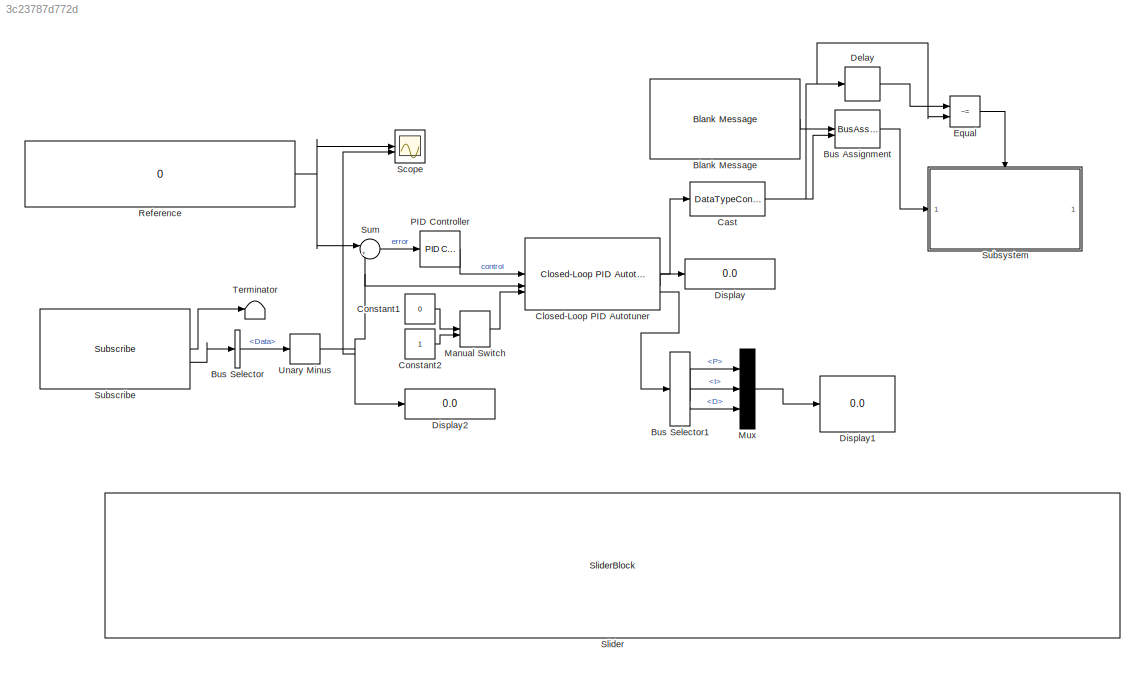
MODEL slx_3c23787d772d
KIND model
CONFIG AbsTol = auto
CONFIG EnableMultiTasking = off
CONFIG FixedStep = 1e-3
CONFIG MaxStep = auto
CONFIG MinStep = auto
CONFIG RelTol = 1e-3
CONFIG SampleTimeConstraint = Unconstrained
CONFIG SolverName = FixedStepAuto
CONFIG StartTime = 0.0
CONFIG StopTime = inf
BLOCK [Reference] Blank Message  REF=robotlib/Blank Message
  LibrarySourceBlock = roslib/ROS/Blank Message
  SourceBlock = robotlib/Blank Message
  SourceType = ROS Blank Message
BLOCK [BusAssignment] Bus Assignment
  AssignedSignals = Data
BLOCK [BusSelector] Bus Selector
  OutputSignals = Data
BLOCK [BusSelector] Bus Selector1
  OutputSignals = P,I,D
BLOCK [DataTypeConversion] Cast
  OutDataTypeStr = int16
  RndMeth = Floor
  SaturateOnIntegerOverflow = off
BLOCK [Reference] Closed-Loop PID Autotuner  REF=slctrlblks/Closed-Loop PID Autotuner
  SourceBlock = slctrlblks/Closed-Loop PID Autotuner
  SourceType = ClosedLoopOnlinePIDTuner
BLOCK [Constant] Constant1
  Value = 0
BLOCK [Constant] Constant2
BLOCK [Delay] Delay
  DelayLength = 1
  InputPortMap = u0
BLOCK [Display] Display
  Decimation = 1
BLOCK [Display] Display1
  Decimation = 1
BLOCK [Display] Display2
  Decimation = 1
BLOCK [RelationalOperator] Equal
  InputSameDT = off
  Operator = ~=
  OutDataTypeStr = boolean
  RndMeth = Simplest
BLOCK [ManualSwitch] Manual Switch
BLOCK [Mux] Mux
  DisplayOption = bar
  Inputs = 3
BLOCK [Reference] PID Controller  REF=slpidlib/PID Controller
  LibrarySourceBlock = simulink/Continuous/PID Controller
  SourceBlock = slpidlib/PID Controller
  SourceType = PID 1dof
BLOCK [Constant] Reference
  SampleTime = 1e-2
  Value = 0
BLOCK [Scope] Scope
  Floating = off
  NumInputPorts = 2
  ScopeSpecificationString = Simulink.scopes.TimeScopeBlockCfg('CurrentConfiguration', extmgr.ConfigurationSet(extmgr.Configuration('Core','General UI',true,'FigureColor',[1 1 1]),extmgr.Configuration('Core','Source UI',true),extmgr.Configuration('Sources','WiredSimulink',true,'DataLoggingSaveFormat','Array','DataLoggingLimitDataPoints',true,'DataLoggingDecimation','1'),extmgr.Configuration('Visuals','Time Domain',true,'Seria...<+2299ch>
BLOCK [SliderBlock] Slider
  ScaleMax = 130
  ScaleMin = -130
  TickInterval = 10
BLOCK [Reference] Subscribe  REF=robotlib/Subscribe
  LibrarySourceBlock = roslib/ROS/Subscribe
  SourceBlock = robotlib/Subscribe
  SourceType = ROS Subscribe
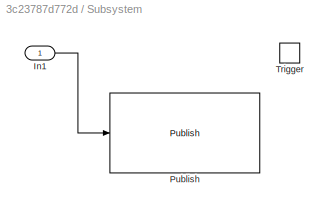
BLOCK [SubSystem] Subsystem
BLOCK [Inport] Subsystem/In1
BLOCK [Reference] Subsystem/Publish  REF=robotlib/Publish
  LibrarySourceBlock = roslib/ROS/Publish
  SourceBlock = robotlib/Publish
  SourceType = ROS Publish
BLOCK [TriggerPort] Subsystem/Trigger
  PortDimensions = 1
  StatesWhenEnabling = held
  VariantControl = (inherit)
BLOCK [Sum] Sum
  Inputs = |+-
BLOCK [Terminator] Terminator
BLOCK [UnaryMinus] Unary Minus
LINE Blank Message:1 -> Bus Assignment:1
LINE Bus Assignment:1 -> Subsystem:1
LINE Bus Selector1:1 -> Mux:1
LINE Bus Selector1:2 -> Mux:2
LINE Bus Selector1:3 -> Mux:3
LINE Bus Selector:1 -> Unary Minus:1
NET Cast:1 -> Bus Assignment:2, Delay:1, Equal:2
LINE Closed-Loop PID Autotuner:1 -> Cast:1
LINE Closed-Loop PID Autotuner:2 -> Display:1
LINE Closed-Loop PID Autotuner:3 -> Bus Selector1:1
LINE Constant1:1 -> Manual Switch:1
LINE Constant2:1 -> Manual Switch:2
LINE Delay:1 -> Equal:1
LINE Equal:1 -> Subsystem:trigger
LINE Manual Switch:1 -> Closed-Loop PID Autotuner:3
LINE Mux:1 -> Display1:1
LINE PID Controller:1 -> Closed-Loop PID Autotuner:1
NET Reference:1 -> Scope:1, Sum:1
LINE Subscribe:1 -> Terminator:1
LINE Subscribe:2 -> Bus Selector:1
LINE Subsystem/In1:1 -> Subsystem/Publish:1
LINE Sum:1 -> PID Controller:1
NET Unary Minus:1 -> Closed-Loop PID Autotuner:2, Display2:1, Scope:2, Sum:2
note: NET lines group one-source signal fan-out (src -> all destinations, sorted); 1:1 wires keep LINE
